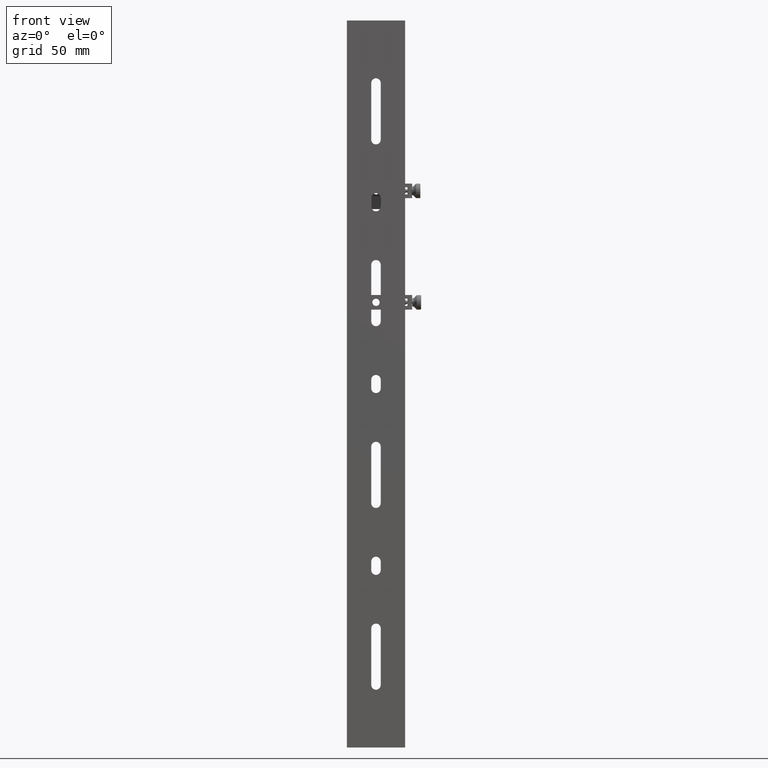
[diagram: clean part render]
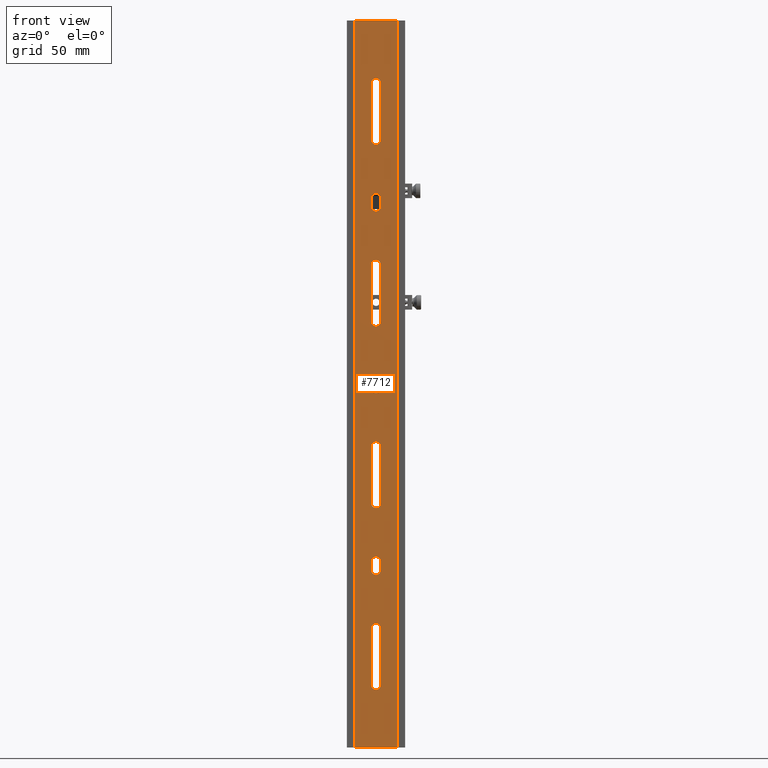
[diagram: same view with one face highlighted and labeled with its STEP entity id]
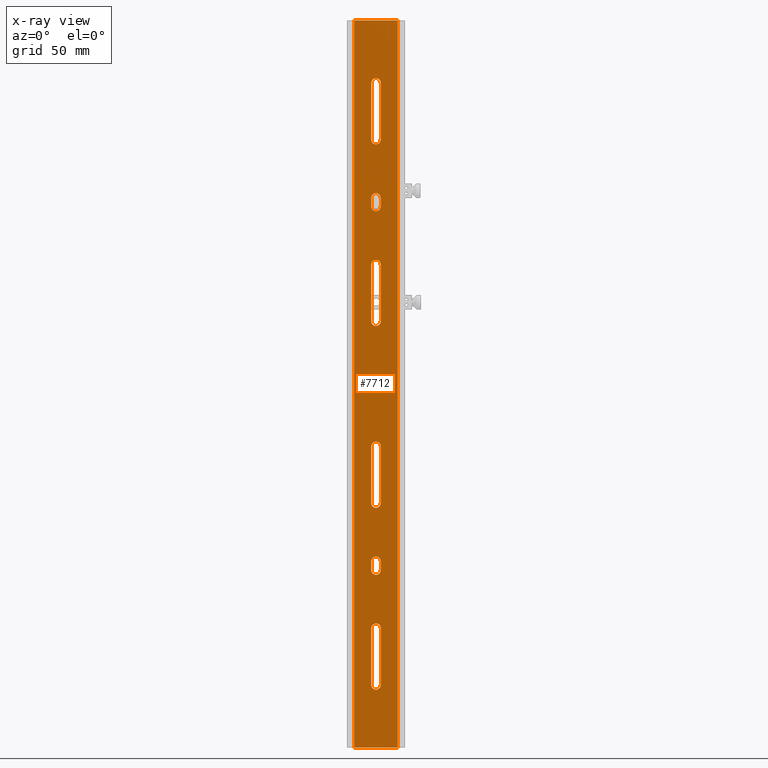
[diagram: x-ray of the same camera — body ghosted, the highlighted face saturated]
A machine part, front view. The second image highlights one B-rep face of the part: STEP entity #7712.
The next image is the same camera in x-ray: the body ghosted, the highlighted face saturated — about 0% of this face is hidden behind the body in this view.
In plain terms, the highlighted planar face has unit normal (0, -1, 0).
Its self-contained STEP definition (entity closure, byte-faithful):
#31 = EDGE_CURVE ( 'NONE', #8036, #3457, #3795, .T. ) ;
#46 = CARTESIAN_POINT ( 'NONE',  ( 3.250000000000029310, -5.999999999999996447, -5.970153145843400595E-16 ) ) ;
#68 = CARTESIAN_POINT ( 'NONE',  ( -3.250000000000001332, -5.999999999999996447, 43.00000000000000711 ) ) ;
#97 = VECTOR ( 'NONE', #3459, 1000.000000000000000 ) ;
#135 = AXIS2_PLACEMENT_3D ( 'NONE', #5480, #2866, #6118 ) ;
#179 = ORIENTED_EDGE ( 'NONE', *, *, #5477, .F. ) ;
#232 = CIRCLE ( 'NONE', #3406, 3.249999999999997780 ) ;
#245 = EDGE_LOOP ( 'NONE', ( #2395, #2874, #4907, #1215 ) ) ;
#246 = DIRECTION ( 'NONE',  ( 0.000000000000000000, -1.000000000000000000, 0.000000000000000000 ) ) ;
#273 = CARTESIAN_POINT ( 'NONE',  ( 3.249999999999993339, -5.999999999999996447, 43.00000000000000711 ) ) ;
#277 = DIRECTION ( 'NONE',  ( 1.000000000000000000, 0.000000000000000000, 0.000000000000000000 ) ) ;
#346 = AXIS2_PLACEMENT_3D ( 'NONE', #8126, #5985, #4695 ) ;
#474 = VERTEX_POINT ( 'NONE', #2402 ) ;
#476 = ORIENTED_EDGE ( 'NONE', *, *, #3086, .T. ) ;
#522 = EDGE_CURVE ( 'NONE', #950, #1768, #682, .T. ) ;
#542 = CIRCLE ( 'NONE', #680, 3.249999999999997780 ) ;
#644 = ORIENTED_EDGE ( 'NONE', *, *, #2803, .F. ) ;
#680 = AXIS2_PLACEMENT_3D ( 'NONE', #3909, #5838, #3871 ) ;
#682 = LINE ( 'NONE', #5192, #8121 ) ;
#778 = EDGE_CURVE ( 'NONE', #4220, #8036, #6409, .T. ) ;
#782 = CARTESIAN_POINT ( 'NONE',  ( 3.249999999999997335, -5.999999999999996447, 3.000000000000000000 ) ) ;
#798 = FACE_BOUND ( 'NONE', #5556, .T. ) ;
#805 = CARTESIAN_POINT ( 'NONE',  ( -3.582091887506006239E-15, -5.999999999999996447, 43.00000000000000711 ) ) ;
#811 = CARTESIAN_POINT ( 'NONE',  ( -3.249999999999975131, -5.999999999999996447, 5.970153145843295085E-16 ) ) ;
#834 = CARTESIAN_POINT ( 'NONE',  ( -2.407148620655123076E-16, -5.999999999999998224, -250.0000000000000000 ) ) ;
#841 = FACE_BOUND ( 'NONE', #6627, .T. ) ;
#843 = EDGE_CURVE ( 'NONE', #3457, #3935, #2975, .T. ) ;
#848 = DIRECTION ( 'NONE',  ( 1.000000000000000000, 0.000000000000000000, 0.000000000000000000 ) ) ;
#880 = LINE ( 'NONE', #6804, #1048 ) ;
#917 = EDGE_CURVE ( 'NONE', #2454, #8079, #5742, .T. ) ;
#923 = VERTEX_POINT ( 'NONE', #4417 ) ;
#924 = CARTESIAN_POINT ( 'NONE',  ( 3.250000000000000444, -5.999999999999996447, 81.99999999999998579 ) ) ;
#950 = VERTEX_POINT ( 'NONE', #1187 ) ;
#1048 = VECTOR ( 'NONE', #2214, 1000.000000000000000 ) ;
#1144 = DIRECTION ( 'NONE',  ( -1.836970198721029934E-16, -0.000000000000000000, -1.000000000000000000 ) ) ;
#1178 = CARTESIAN_POINT ( 'NONE',  ( 3.249999999999993339, -5.999999999999996447, -81.99999999999998579 ) ) ;
#1179 = CARTESIAN_POINT ( 'NONE',  ( 3.249999999999996447, -5.999999999999996447, -5.970153145843339459E-16 ) ) ;
#1187 = CARTESIAN_POINT ( 'NONE',  ( -3.249999999999994227, -5.999999999999996447, -43.00000000000000711 ) ) ;
#1191 = VERTEX_POINT ( 'NONE', #273 ) ;
#1215 = ORIENTED_EDGE ( 'NONE', *, *, #7446, .F. ) ;
#1222 = ORIENTED_EDGE ( 'NONE', *, *, #1556, .T. ) ;
#1265 = DIRECTION ( 'NONE',  ( -1.836970198721029934E-16, -0.000000000000000000, -1.000000000000000000 ) ) ;
#1304 = CARTESIAN_POINT ( 'NONE',  ( -3.249999999999994227, -5.999999999999996447, 81.99999999999998579 ) ) ;
#1336 = EDGE_CURVE ( 'NONE', #4220, #3935, #3118, .T. ) ;
#1347 = DIRECTION ( 'NONE',  ( -1.836970198721029934E-16, -0.000000000000000000, -1.000000000000000000 ) ) ;
#1354 = EDGE_CURVE ( 'NONE', #6462, #3281, #232, .T. ) ;
#1445 = EDGE_CURVE ( 'NONE', #3281, #7791, #1458, .T. ) ;
#1458 = LINE ( 'NONE', #3407, #2435 ) ;
#1464 = ORIENTED_EDGE ( 'NONE', *, *, #6461, .F. ) ;
#1474 = FACE_BOUND ( 'NONE', #2458, .T. ) ;
#1480 = AXIS2_PLACEMENT_3D ( 'NONE', #2659, #5835, #2529 ) ;
#1517 = FACE_BOUND ( 'NONE', #7920, .T. ) ;
#1533 = DIRECTION ( 'NONE',  ( 1.000000000000000000, 0.000000000000000000, 0.000000000000000000 ) ) ;
#1556 = EDGE_CURVE ( 'NONE', #5043, #1755, #5669, .T. ) ;
#1575 = ORIENTED_EDGE ( 'NONE', *, *, #4198, .T. ) ;
#1576 = CIRCLE ( 'NONE', #346, 3.249999999999997780 ) ;
#1625 = CARTESIAN_POINT ( 'NONE',  ( 3.250000000000019540, -5.999999999999996447, -5.970153145843375943E-16 ) ) ;
#1663 = ORIENTED_EDGE ( 'NONE', *, *, #1336, .T. ) ;
#1715 = VECTOR ( 'NONE', #6170, 1000.000000000000000 ) ;
#1738 = DIRECTION ( 'NONE',  ( 1.000000000000000000, 0.000000000000000000, 0.000000000000000000 ) ) ;
#1744 = DIRECTION ( 'NONE',  ( 0.000000000000000000, -1.000000000000000000, 0.000000000000000000 ) ) ;
#1750 = ORIENTED_EDGE ( 'NONE', *, *, #6179, .T. ) ;
#1755 = VERTEX_POINT ( 'NONE', #6192 ) ;
#1766 = VERTEX_POINT ( 'NONE', #6025 ) ;
#1768 = VERTEX_POINT ( 'NONE', #7312 ) ;
#1776 = CARTESIAN_POINT ( 'NONE',  ( -15.00000000000003197, -5.999999999999996447, 250.0000000000000000 ) ) ;
#1852 = EDGE_CURVE ( 'NONE', #923, #4887, #4100, .T. ) ;
#1931 = CARTESIAN_POINT ( 'NONE',  ( -3.249999999999998224, -5.999999999999996447, -2.999999999999999556 ) ) ;
#1933 = CARTESIAN_POINT ( 'NONE',  ( 3.249999999999996003, -5.999999999999996447, 122.0000000000000000 ) ) ;
#1976 = EDGE_CURVE ( 'NONE', #474, #950, #1576, .T. ) ;
#2036 = CARTESIAN_POINT ( 'NONE',  ( -3.250000000000009326, -5.999999999999996447, 5.970153145843364110E-16 ) ) ;
#2056 = AXIS2_PLACEMENT_3D ( 'NONE', #7588, #2958, #1533 ) ;
#2058 = DIRECTION ( 'NONE',  ( -1.836970198721027962E-16, -0.000000000000000000, -1.000000000000000000 ) ) ;
#2064 = AXIS2_PLACEMENT_3D ( 'NONE', #805, #4584, #848 ) ;
#2107 = LINE ( 'NONE', #7344, #6027 ) ;
#2149 = DIRECTION ( 'NONE',  ( -1.836970198721029934E-16, -0.000000000000000000, -1.000000000000000000 ) ) ;
#2214 = DIRECTION ( 'NONE',  ( -1.836970198721027962E-16, -0.000000000000000000, -1.000000000000000000 ) ) ;
#2227 = LINE ( 'NONE', #5489, #1715 ) ;
#2266 = CARTESIAN_POINT ( 'NONE',  ( -3.582091887506006239E-15, -5.999999999999996447, -81.99999999999998579 ) ) ;
#2289 = DIRECTION ( 'NONE',  ( -1.836970198721029441E-16, -0.000000000000000000, -1.000000000000000000 ) ) ;
#2297 = ORIENTED_EDGE ( 'NONE', *, *, #778, .F. ) ;
#2302 = VECTOR ( 'NONE', #7670, 1000.000000000000000 ) ;
#2309 = DIRECTION ( 'NONE',  ( 1.000000000000000000, 0.000000000000000000, 0.000000000000000000 ) ) ;
#2345 = VECTOR ( 'NONE', #3015, 1000.000000000000000 ) ;
#2356 = ORIENTED_EDGE ( 'NONE', *, *, #5561, .F. ) ;
#2370 = CARTESIAN_POINT ( 'NONE',  ( -15.00000000000003730, -5.999999999999996447, 294.6622748219313621 ) ) ;
#2381 = EDGE_CURVE ( 'NONE', #2454, #6829, #2961, .T. ) ;
#2395 = ORIENTED_EDGE ( 'NONE', *, *, #2381, .F. ) ;
#2402 = CARTESIAN_POINT ( 'NONE',  ( 3.250000000000000444, -5.999999999999996447, -43.00000000000000711 ) ) ;
#2435 = VECTOR ( 'NONE', #4726, 1000.000000000000000 ) ;
#2454 = VERTEX_POINT ( 'NONE', #5355 ) ;
#2458 = EDGE_LOOP ( 'NONE', ( #5507, #7945, #6261, #4335 ) ) ;
#2489 = EDGE_CURVE ( 'NONE', #6462, #4491, #880, .T. ) ;
#2515 = EDGE_CURVE ( 'NONE', #7246, #2846, #7080, .T. ) ;
#2529 = DIRECTION ( 'NONE',  ( 1.000000000000000000, 0.000000000000000000, 0.000000000000000000 ) ) ;
#2579 = CARTESIAN_POINT ( 'NONE',  ( -3.249999999999998224, -5.999999999999996447, 122.0000000000000000 ) ) ;
#2628 = LINE ( 'NONE', #46, #4057 ) ;
#2653 = VERTEX_POINT ( 'NONE', #1178 ) ;
#2659 = CARTESIAN_POINT ( 'NONE',  ( -5.368688533928914978E-15, -5.999999999999996447, -207.0000000000000000 ) ) ;
#2670 = DIRECTION ( 'NONE',  ( -1.836970198721029934E-16, -0.000000000000000000, -1.000000000000000000 ) ) ;
#2730 = ORIENTED_EDGE ( 'NONE', *, *, #31, .F. ) ;
#2761 = CARTESIAN_POINT ( 'NONE',  ( 3.249999999999998668, -5.999999999999996447, -168.0000000000000000 ) ) ;
#2803 = EDGE_CURVE ( 'NONE', #2846, #7038, #7104, .T. ) ;
#2846 = VERTEX_POINT ( 'NONE', #1304 ) ;
#2866 = DIRECTION ( 'NONE',  ( 0.000000000000000000, -1.000000000000000000, 0.000000000000000000 ) ) ;
#2869 = CARTESIAN_POINT ( 'NONE',  ( -5.510910596163088569E-16, -5.999999999999996447, -3.000000000000000000 ) ) ;
#2874 = ORIENTED_EDGE ( 'NONE', *, *, #917, .T. ) ;
#2950 = DIRECTION ( 'NONE',  ( 0.000000000000000000, -1.000000000000000000, 0.000000000000000000 ) ) ;
#2958 = DIRECTION ( 'NONE',  ( 0.000000000000000000, -1.000000000000000000, 0.000000000000000000 ) ) ;
#2961 = CIRCLE ( 'NONE', #6109, 3.249999999999997780 ) ;
#2975 = CIRCLE ( 'NONE', #5992, 3.249999999999997780 ) ;
#3015 = DIRECTION ( 'NONE',  ( 1.236303256585107026E-16, 0.000000000000000000, -1.000000000000000000 ) ) ;
#3086 = EDGE_CURVE ( 'NONE', #4137, #5990, #2628, .T. ) ;
#3091 = ORIENTED_EDGE ( 'NONE', *, *, #7289, .F. ) ;
#3118 = LINE ( 'NONE', #1179, #2302 ) ;
#3214 = CARTESIAN_POINT ( 'NONE',  ( 3.249999999999991562, -5.999999999999996447, 168.0000000000000000 ) ) ;
#3218 = CARTESIAN_POINT ( 'NONE',  ( -3.249999999999998224, -5.999999999999996447, -128.0000000000000000 ) ) ;
#3229 = VECTOR ( 'NONE', #2058, 1000.000000000000000 ) ;
#3251 = AXIS2_PLACEMENT_3D ( 'NONE', #4201, #2950, #7496 ) ;
#3281 = VERTEX_POINT ( 'NONE', #5537 ) ;
#3303 = CIRCLE ( 'NONE', #135, 3.249999999999997780 ) ;
#3308 = DIRECTION ( 'NONE',  ( -1.836970198721029934E-16, -0.000000000000000000, -1.000000000000000000 ) ) ;
#3321 = CARTESIAN_POINT ( 'NONE',  ( 5.510910596163088569E-16, -5.999999999999996447, 128.0000000000000000 ) ) ;
#3366 = CARTESIAN_POINT ( 'NONE',  ( 3.249999999999984901, -5.999999999999996447, -5.970153145843319737E-16 ) ) ;
#3406 = AXIS2_PLACEMENT_3D ( 'NONE', #3321, #8305, #1738 ) ;
#3407 = CARTESIAN_POINT ( 'NONE',  ( -3.250000000000021316, -5.999999999999996447, 5.970153145843379888E-16 ) ) ;
#3429 = VERTEX_POINT ( 'NONE', #3218 ) ;
#3452 = DIRECTION ( 'NONE',  ( -1.836970198721029934E-16, -0.000000000000000000, -1.000000000000000000 ) ) ;
#3457 = VERTEX_POINT ( 'NONE', #1931 ) ;
#3459 = DIRECTION ( 'NONE',  ( 1.000000000000000000, 0.000000000000000000, 0.000000000000000000 ) ) ;
#3465 = FACE_BOUND ( 'NONE', #245, .T. ) ;
#3508 = ORIENTED_EDGE ( 'NONE', *, *, #4402, .F. ) ;
#3584 = VERTEX_POINT ( 'NONE', #6648 ) ;
#3615 = ORIENTED_EDGE ( 'NONE', *, *, #7913, .F. ) ;
#3754 = VERTEX_POINT ( 'NONE', #4535 ) ;
#3795 = LINE ( 'NONE', #8166, #4827 ) ;
#3801 = ORIENTED_EDGE ( 'NONE', *, *, #8273, .F. ) ;
#3871 = DIRECTION ( 'NONE',  ( 1.000000000000000000, 0.000000000000000000, 0.000000000000000000 ) ) ;
#3909 = CARTESIAN_POINT ( 'NONE',  ( 1.795495241083097500E-15, -5.999999999999996447, -168.0000000000000000 ) ) ;
#3935 = VERTEX_POINT ( 'NONE', #8384 ) ;
#3948 = ORIENTED_EDGE ( 'NONE', *, *, #1852, .T. ) ;
#3981 = CARTESIAN_POINT ( 'NONE',  ( -3.250000000000034195, -5.999999999999996447, 5.970153145843409470E-16 ) ) ;
#4057 = VECTOR ( 'NONE', #2670, 1000.000000000000000 ) ;
#4100 = LINE ( 'NONE', #834, #97 ) ;
#4106 = FACE_OUTER_BOUND ( 'NONE', #6096, .T. ) ;
#4132 = DIRECTION ( 'NONE',  ( -1.236303256585107026E-16, 0.000000000000000000, 1.000000000000000000 ) ) ;
#4135 = EDGE_CURVE ( 'NONE', #474, #2653, #6183, .T. ) ;
#4137 = VERTEX_POINT ( 'NONE', #2761 ) ;
#4148 = PLANE ( 'NONE',  #7143 ) ;
#4198 = EDGE_CURVE ( 'NONE', #4887, #7703, #2107, .T. ) ;
#4201 = CARTESIAN_POINT ( 'NONE',  ( 5.510910596163088569E-16, -5.999999999999996447, 3.000000000000000000 ) ) ;
#4220 = VERTEX_POINT ( 'NONE', #782 ) ;
#4323 = CIRCLE ( 'NONE', #6930, 3.249999999999997780 ) ;
#4335 = ORIENTED_EDGE ( 'NONE', *, *, #8410, .F. ) ;
#4385 = DIRECTION ( 'NONE',  ( -1.836970198721027962E-16, -0.000000000000000000, -1.000000000000000000 ) ) ;
#4402 = EDGE_CURVE ( 'NONE', #6007, #5990, #8086, .T. ) ;
#4417 = CARTESIAN_POINT ( 'NONE',  ( -15.00000000000003730, -5.999999999999998224, -250.0000000000000000 ) ) ;
#4476 = ORIENTED_EDGE ( 'NONE', *, *, #1976, .F. ) ;
#4491 = VERTEX_POINT ( 'NONE', #1933 ) ;
#4531 = CARTESIAN_POINT ( 'NONE',  ( 3.249999999999997335, -5.999999999999996447, -122.0000000000000000 ) ) ;
#4535 = CARTESIAN_POINT ( 'NONE',  ( -3.249999999999997780, -5.999999999999996447, -122.0000000000000000 ) ) ;
#4567 = CARTESIAN_POINT ( 'NONE',  ( -3.250000000000002665, -5.999999999999996447, -207.0000000000000000 ) ) ;
#4584 = DIRECTION ( 'NONE',  ( 0.000000000000000000, -1.000000000000000000, 0.000000000000000000 ) ) ;
#4637 = LINE ( 'NONE', #811, #3229 ) ;
#4695 = DIRECTION ( 'NONE',  ( 1.000000000000000000, 0.000000000000000000, 0.000000000000000000 ) ) ;
#4704 = LINE ( 'NONE', #3981, #8371 ) ;
#4726 = DIRECTION ( 'NONE',  ( -1.836970198721027962E-16, -0.000000000000000000, -1.000000000000000000 ) ) ;
#4806 = CARTESIAN_POINT ( 'NONE',  ( -5.510910596163088569E-16, -5.999999999999996447, -128.0000000000000000 ) ) ;
#4827 = VECTOR ( 'NONE', #2289, 1000.000000000000000 ) ;
#4831 = CARTESIAN_POINT ( 'NONE',  ( 0.000000000000000000, -5.999999999999996447, 0.000000000000000000 ) ) ;
#4887 = VERTEX_POINT ( 'NONE', #6602 ) ;
#4907 = ORIENTED_EDGE ( 'NONE', *, *, #8306, .F. ) ;
#4988 = ORIENTED_EDGE ( 'NONE', *, *, #2515, .F. ) ;
#5030 = CARTESIAN_POINT ( 'NONE',  ( 3.249999999999997335, -5.999999999999996447, 128.0000000000000000 ) ) ;
#5043 = VERTEX_POINT ( 'NONE', #4531 ) ;
#5083 = ORIENTED_EDGE ( 'NONE', *, *, #843, .F. ) ;
#5098 = LINE ( 'NONE', #5607, #6313 ) ;
#5179 = VECTOR ( 'NONE', #4385, 1000.000000000000000 ) ;
#5192 = CARTESIAN_POINT ( 'NONE',  ( -3.249999999999986233, -5.999999999999996447, 5.970153145843321709E-16 ) ) ;
#5353 = CIRCLE ( 'NONE', #8089, 3.249999999999997780 ) ;
#5355 = CARTESIAN_POINT ( 'NONE',  ( 3.249999999999998668, -5.999999999999996447, 207.0000000000000000 ) ) ;
#5361 = AXIS2_PLACEMENT_3D ( 'NONE', #7450, #6250, #277 ) ;
#5434 = AXIS2_PLACEMENT_3D ( 'NONE', #7487, #6037, #8135 ) ;
#5477 = EDGE_CURVE ( 'NONE', #3754, #3429, #4637, .T. ) ;
#5480 = CARTESIAN_POINT ( 'NONE',  ( -5.368688533928914978E-15, -5.999999999999996447, 168.0000000000000000 ) ) ;
#5489 = CARTESIAN_POINT ( 'NONE',  ( -3.249999999999965361, -5.999999999999996447, 5.970153145843283252E-16 ) ) ;
#5507 = ORIENTED_EDGE ( 'NONE', *, *, #1445, .F. ) ;
#5537 = CARTESIAN_POINT ( 'NONE',  ( -3.249999999999997335, -5.999999999999996447, 128.0000000000000000 ) ) ;
#5556 = EDGE_LOOP ( 'NONE', ( #2297, #1663, #5083, #2730 ) ) ;
#5561 = EDGE_CURVE ( 'NONE', #1768, #2653, #4323, .T. ) ;
#5572 = DIRECTION ( 'NONE',  ( 0.000000000000000000, -1.000000000000000000, 0.000000000000000000 ) ) ;
#5596 = EDGE_CURVE ( 'NONE', #3584, #6007, #2227, .T. ) ;
#5607 = CARTESIAN_POINT ( 'NONE',  ( -2.407148620655123076E-16, -5.999999999999998224, 250.0000000000000000 ) ) ;
#5639 = ORIENTED_EDGE ( 'NONE', *, *, #522, .F. ) ;
#5669 = LINE ( 'NONE', #1625, #5179 ) ;
#5742 = LINE ( 'NONE', #8314, #7353 ) ;
#5771 = CARTESIAN_POINT ( 'NONE',  ( 3.249999999999991562, -5.999999999999996447, -207.0000000000000000 ) ) ;
#5772 = CIRCLE ( 'NONE', #2064, 3.249999999999997780 ) ;
#5835 = DIRECTION ( 'NONE',  ( 0.000000000000000000, -1.000000000000000000, 0.000000000000000000 ) ) ;
#5838 = DIRECTION ( 'NONE',  ( 0.000000000000000000, -1.000000000000000000, 0.000000000000000000 ) ) ;
#5894 = VECTOR ( 'NONE', #2149, 1000.000000000000000 ) ;
#5985 = DIRECTION ( 'NONE',  ( 0.000000000000000000, -1.000000000000000000, 0.000000000000000000 ) ) ;
#5990 = VERTEX_POINT ( 'NONE', #5771 ) ;
#5992 = AXIS2_PLACEMENT_3D ( 'NONE', #2869, #8141, #2309 ) ;
#6007 = VERTEX_POINT ( 'NONE', #4567 ) ;
#6025 = CARTESIAN_POINT ( 'NONE',  ( -3.250000000000002665, -5.999999999999996447, 168.0000000000000000 ) ) ;
#6027 = VECTOR ( 'NONE', #4132, 1000.000000000000000 ) ;
#6037 = DIRECTION ( 'NONE',  ( 0.000000000000000000, -1.000000000000000000, 0.000000000000000000 ) ) ;
#6071 = FACE_BOUND ( 'NONE', #8264, .T. ) ;
#6087 = VERTEX_POINT ( 'NONE', #1776 ) ;
#6091 = CARTESIAN_POINT ( 'NONE',  ( 3.250000000000007994, -5.999999999999996447, -5.970153145843362138E-16 ) ) ;
#6096 = EDGE_LOOP ( 'NONE', ( #7749, #3948, #1575, #3091 ) ) ;
#6109 = AXIS2_PLACEMENT_3D ( 'NONE', #7627, #1744, #6938 ) ;
#6118 = DIRECTION ( 'NONE',  ( 1.000000000000000000, 0.000000000000000000, 0.000000000000000000 ) ) ;
#6170 = DIRECTION ( 'NONE',  ( -1.836970198721029934E-16, -0.000000000000000000, -1.000000000000000000 ) ) ;
#6179 = EDGE_CURVE ( 'NONE', #7246, #1191, #6625, .T. ) ;
#6183 = LINE ( 'NONE', #6091, #5894 ) ;
#6192 = CARTESIAN_POINT ( 'NONE',  ( 3.249999999999996447, -5.999999999999996447, -128.0000000000000000 ) ) ;
#6216 = CARTESIAN_POINT ( 'NONE',  ( -3.249999999999997780, -5.999999999999996447, 3.000000000000000444 ) ) ;
#6250 = DIRECTION ( 'NONE',  ( 0.000000000000000000, -1.000000000000000000, 0.000000000000000000 ) ) ;
#6261 = ORIENTED_EDGE ( 'NONE', *, *, #2489, .T. ) ;
#6277 = ORIENTED_EDGE ( 'NONE', *, *, #4135, .T. ) ;
#6313 = VECTOR ( 'NONE', #8395, 1000.000000000000000 ) ;
#6409 = CIRCLE ( 'NONE', #3251, 3.249999999999997780 ) ;
#6461 = EDGE_CURVE ( 'NONE', #4137, #3584, #542, .T. ) ;
#6462 = VERTEX_POINT ( 'NONE', #5030 ) ;
#6602 = CARTESIAN_POINT ( 'NONE',  ( 15.00000000000002842, -5.999999999999996447, -250.0000000000000568 ) ) ;
#6625 = LINE ( 'NONE', #3366, #6776 ) ;
#6627 = EDGE_LOOP ( 'NONE', ( #1464, #476, #3508, #6787 ) ) ;
#6648 = CARTESIAN_POINT ( 'NONE',  ( -3.249999999999996003, -5.999999999999996447, -168.0000000000000000 ) ) ;
#6759 = DIRECTION ( 'NONE',  ( 0.000000000000000000, -1.000000000000000000, 0.000000000000000000 ) ) ;
#6776 = VECTOR ( 'NONE', #3452, 1000.000000000000000 ) ;
#6787 = ORIENTED_EDGE ( 'NONE', *, *, #5596, .F. ) ;
#6804 = CARTESIAN_POINT ( 'NONE',  ( 3.249999999999973355, -5.999999999999996447, -5.970153145843292127E-16 ) ) ;
#6829 = VERTEX_POINT ( 'NONE', #7076 ) ;
#6930 = AXIS2_PLACEMENT_3D ( 'NONE', #2266, #5572, #8022 ) ;
#6937 = VECTOR ( 'NONE', #1347, 1000.000000000000000 ) ;
#6938 = DIRECTION ( 'NONE',  ( 1.000000000000000000, 0.000000000000000000, 0.000000000000000000 ) ) ;
#6947 = DIRECTION ( 'NONE',  ( 1.000000000000000000, 0.000000000000000000, 0.000000000000000000 ) ) ;
#6960 = CARTESIAN_POINT ( 'NONE',  ( 14.99999999999996625, -5.999999999999996447, 250.0000000000000000 ) ) ;
#7038 = VERTEX_POINT ( 'NONE', #68 ) ;
#7076 = CARTESIAN_POINT ( 'NONE',  ( -3.249999999999996003, -5.999999999999996447, 207.0000000000000000 ) ) ;
#7080 = CIRCLE ( 'NONE', #5434, 3.249999999999997780 ) ;
#7104 = LINE ( 'NONE', #2036, #6937 ) ;
#7143 = AXIS2_PLACEMENT_3D ( 'NONE', #4831, #6759, #8500 ) ;
#7246 = VERTEX_POINT ( 'NONE', #924 ) ;
#7289 = EDGE_CURVE ( 'NONE', #6087, #7703, #5098, .T. ) ;
#7312 = CARTESIAN_POINT ( 'NONE',  ( -3.250000000000001332, -5.999999999999996447, -81.99999999999998579 ) ) ;
#7344 = CARTESIAN_POINT ( 'NONE',  ( 14.99999999999996092, -5.999999999999996447, 294.6622748219313621 ) ) ;
#7353 = VECTOR ( 'NONE', #1144, 1000.000000000000000 ) ;
#7446 = EDGE_CURVE ( 'NONE', #6829, #1766, #4704, .T. ) ;
#7450 = CARTESIAN_POINT ( 'NONE',  ( -5.510910596163088569E-16, -5.999999999999996447, 122.0000000000000000 ) ) ;
#7487 = CARTESIAN_POINT ( 'NONE',  ( 3.582091887506006239E-15, -5.999999999999996447, 81.99999999999998579 ) ) ;
#7496 = DIRECTION ( 'NONE',  ( 1.000000000000000000, 0.000000000000000000, 0.000000000000000000 ) ) ;
#7588 = CARTESIAN_POINT ( 'NONE',  ( 5.510910596163088569E-16, -5.999999999999996447, -122.0000000000000000 ) ) ;
#7627 = CARTESIAN_POINT ( 'NONE',  ( 1.795495241083097500E-15, -5.999999999999996447, 207.0000000000000000 ) ) ;
#7650 = FACE_BOUND ( 'NONE', #8348, .T. ) ;
#7662 = EDGE_CURVE ( 'NONE', #6087, #923, #8048, .T. ) ;
#7670 = DIRECTION ( 'NONE',  ( -1.836970198721029441E-16, -0.000000000000000000, -1.000000000000000000 ) ) ;
#7703 = VERTEX_POINT ( 'NONE', #6960 ) ;
#7712 = ADVANCED_FACE ( 'NONE', ( #1474, #7650, #798, #841, #4106, #3465, #6071, #1517 ), #4148, .T. ) ;
#7749 = ORIENTED_EDGE ( 'NONE', *, *, #7662, .T. ) ;
#7791 = VERTEX_POINT ( 'NONE', #2579 ) ;
#7913 = EDGE_CURVE ( 'NONE', #5043, #3754, #8493, .T. ) ;
#7920 = EDGE_LOOP ( 'NONE', ( #4476, #6277, #2356, #5639 ) ) ;
#7945 = ORIENTED_EDGE ( 'NONE', *, *, #1354, .F. ) ;
#7969 = ORIENTED_EDGE ( 'NONE', *, *, #7972, .F. ) ;
#7972 = EDGE_CURVE ( 'NONE', #3429, #1755, #5353, .T. ) ;
#8022 = DIRECTION ( 'NONE',  ( 1.000000000000000000, 0.000000000000000000, 0.000000000000000000 ) ) ;
#8036 = VERTEX_POINT ( 'NONE', #6216 ) ;
#8048 = LINE ( 'NONE', #2370, #2345 ) ;
#8079 = VERTEX_POINT ( 'NONE', #3214 ) ;
#8086 = CIRCLE ( 'NONE', #1480, 3.249999999999997780 ) ;
#8089 = AXIS2_PLACEMENT_3D ( 'NONE', #4806, #246, #6947 ) ;
#8094 = CIRCLE ( 'NONE', #5361, 3.249999999999997780 ) ;
#8121 = VECTOR ( 'NONE', #3308, 1000.000000000000000 ) ;
#8126 = CARTESIAN_POINT ( 'NONE',  ( 3.582091887506006239E-15, -5.999999999999996447, -43.00000000000000711 ) ) ;
#8135 = DIRECTION ( 'NONE',  ( 1.000000000000000000, 0.000000000000000000, 0.000000000000000000 ) ) ;
#8141 = DIRECTION ( 'NONE',  ( 0.000000000000000000, -1.000000000000000000, 0.000000000000000000 ) ) ;
#8166 = CARTESIAN_POINT ( 'NONE',  ( -3.249999999999998224, -5.999999999999996447, 5.970153145843342417E-16 ) ) ;
#8264 = EDGE_LOOP ( 'NONE', ( #4988, #1750, #3801, #644 ) ) ;
#8273 = EDGE_CURVE ( 'NONE', #7038, #1191, #5772, .T. ) ;
#8305 = DIRECTION ( 'NONE',  ( 0.000000000000000000, -1.000000000000000000, 0.000000000000000000 ) ) ;
#8306 = EDGE_CURVE ( 'NONE', #1766, #8079, #3303, .T. ) ;
#8314 = CARTESIAN_POINT ( 'NONE',  ( 3.249999999999960476, -5.999999999999996447, -5.970153145843275364E-16 ) ) ;
#8348 = EDGE_LOOP ( 'NONE', ( #3615, #1222, #7969, #179 ) ) ;
#8371 = VECTOR ( 'NONE', #1265, 1000.000000000000000 ) ;
#8384 = CARTESIAN_POINT ( 'NONE',  ( 3.249999999999996447, -5.999999999999996447, -3.000000000000000000 ) ) ;
#8395 = DIRECTION ( 'NONE',  ( 1.000000000000000000, 0.000000000000000000, 0.000000000000000000 ) ) ;
#8410 = EDGE_CURVE ( 'NONE', #7791, #4491, #8094, .T. ) ;
#8493 = CIRCLE ( 'NONE', #2056, 3.249999999999997780 ) ;
#8500 = DIRECTION ( 'NONE',  ( 1.000000000000000000, 0.000000000000000000, 0.000000000000000000 ) ) ;